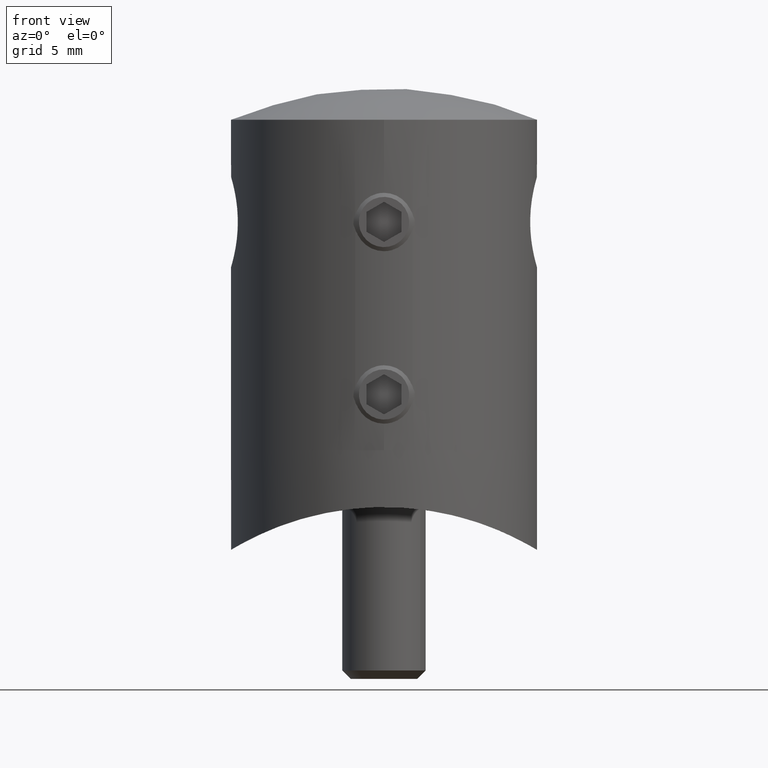
[diagram: clean part render]
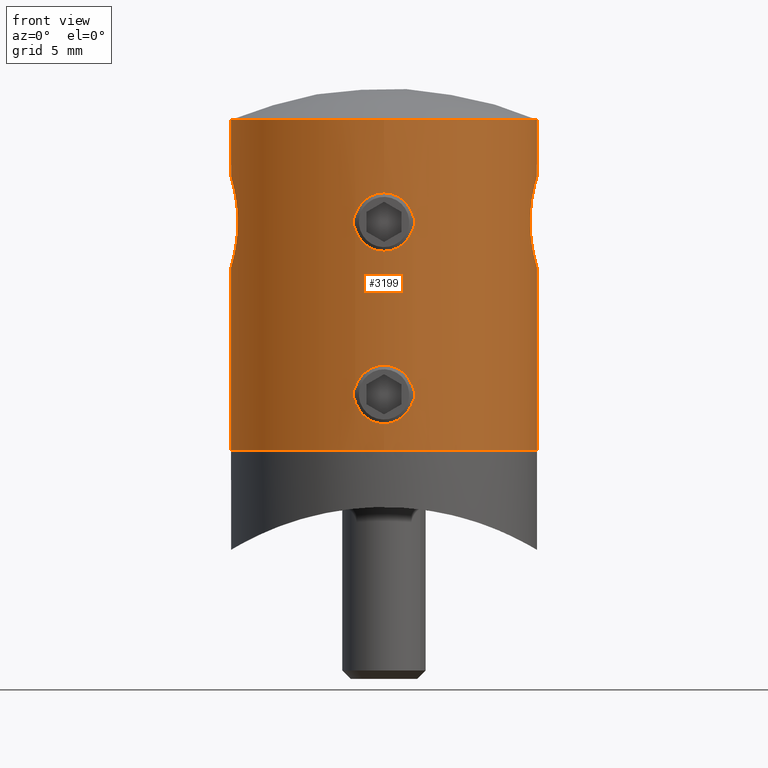
[diagram: same view with one face highlighted and labeled with its STEP entity id]
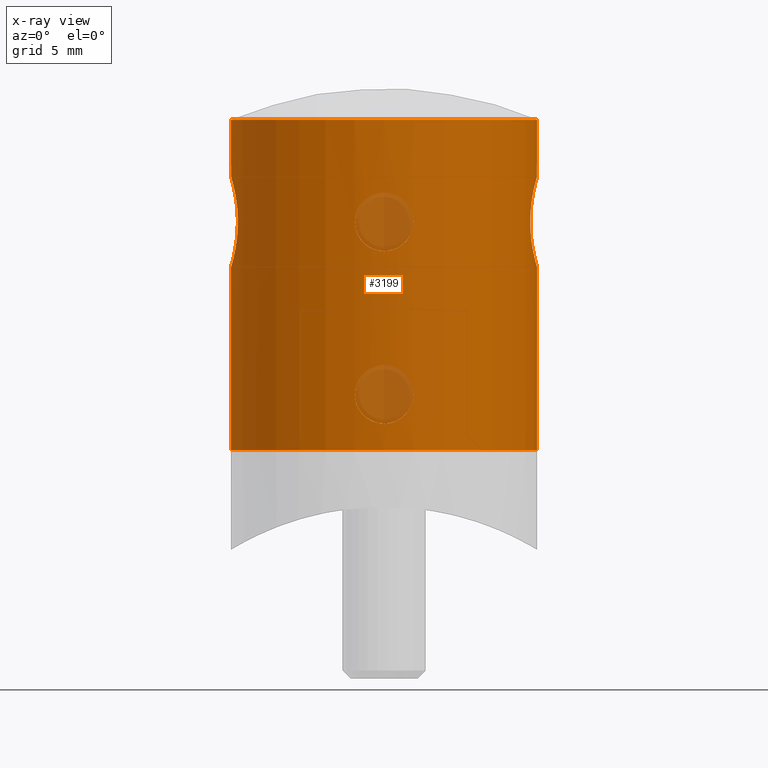
[diagram: x-ray of the same camera — body ghosted, the highlighted face saturated]
A machine part, front view. The second image highlights one B-rep face of the part: STEP entity #3199.
The next image is the same camera in x-ray: the body ghosted, the highlighted face saturated — about 5% of this face is hidden behind the body in this view.
In plain terms, the highlighted cylindrical surface (bore or boss wall) has radius 11 mm, axis along (0, 0, 1).
Its self-contained STEP definition (entity closure, byte-faithful):
#17 = CARTESIAN_POINT ( 'NONE',  ( 10.55956165024552540, 3.082662193727776057, 2.348977628326424760 ) ) ;
#23 = CARTESIAN_POINT ( 'NONE',  ( -2.032659403802354436, -10.81059865162793798, 3.945146108271627927 ) ) ;
#88 = CARTESIAN_POINT ( 'NONE',  ( -0.6781069570240140232, -10.97981643080941438, 5.392249392990757784 ) ) ;
#153 = CARTESIAN_POINT ( 'NONE',  ( -1.054892582810818880, -10.94989690070195998, 5.220954790265365908 ) ) ;
#243 = CARTESIAN_POINT ( 'NONE',  ( -10.82082302089214032, 1.985311474497417183, 5.981802369643311579 ) ) ;
#312 = CARTESIAN_POINT ( 'NONE',  ( -10.87968053426905257, -1.632286244592557667, 6.218326391172696255 ) ) ;
#324 = ORIENTED_EDGE ( 'NONE', *, *, #16314, .T. ) ;
#963 = CARTESIAN_POINT ( 'NONE',  ( -1.388537688308395968, -10.91244555373267389, -10.58133857723259474 ) ) ;
#1035 = CARTESIAN_POINT ( 'NONE',  ( 10.95133815871162497, -1.052168424144557690, 6.482278922429544288 ) ) ;
#1097 = CARTESIAN_POINT ( 'NONE',  ( 10.69344161713029528, -2.581728074328438094, 1.414362566320142012 ) ) ;
#1165 = CARTESIAN_POINT ( 'NONE',  ( 10.90685326097161401, 1.442026654976225730, 6.320285115387410890 ) ) ;
#1186 = EDGE_CURVE ( 'NONE', #5651, #5651, #13024, .T. ) ;
#1204 = CARTESIAN_POINT ( 'NONE',  ( 0.2763807230148072058, -10.99736402501771515, -11.08631854803060968 ) ) ;
#1252 = CARTESIAN_POINT ( 'NONE',  ( 1.293096815573841152, -10.92546660261073121, -10.67704159633094463 ) ) ;
#1271 = CARTESIAN_POINT ( 'NONE',  ( -10.87979518323163752, 1.631551703679881671, 0.5812257195784085173 ) ) ;
#1283 = CARTESIAN_POINT ( 'NONE',  ( 1.887604345443004039, -10.83696457773362098, 2.469507123571951013 ) ) ;
#1313 = CARTESIAN_POINT ( 'NONE',  ( 0.2735815360057495260, -11.00002099589624116, -6.899890021487316005 ) ) ;
#1334 = CARTESIAN_POINT ( 'NONE',  ( -10.63348764701147786, 2.818438293724330634, 5.032002379398877956 ) ) ;
#1341 = CARTESIAN_POINT ( 'NONE',  ( 10.96936271619093439, 0.8467281624249234362, 0.2550005949569723041 ) ) ;
#1413 = CARTESIAN_POINT ( 'NONE',  ( 10.54066686130504849, 3.145828498892194958, 2.556303914701417490 ) ) ;
#1419 = CARTESIAN_POINT ( 'NONE',  ( -0.5472116004057775429, -10.98720989896580846, 5.432113519889659514 ) ) ;
#1456 = DIRECTION ( 'NONE',  ( 0.000000000000000000, -1.000000000000000000, 0.000000000000000000 ) ) ;
#1457 = CARTESIAN_POINT ( 'NONE',  ( -10.51551207130800414, 3.228920975059768939, 2.972865257951308404 ) ) ;
#1461 = CARTESIAN_POINT ( 'NONE',  ( 10.87970059509409815, 1.632192217108486831, 0.5815857855673306487 ) ) ;
#1467 = CARTESIAN_POINT ( 'NONE',  ( 1.670711584421386231, -10.87265779864739379, 2.120311429146117810 ) ) ;
#1574 = CARTESIAN_POINT ( 'NONE',  ( 11.00000000000000000, 1.355252715606880543E-17, 0.1499999999999964972 ) ) ;
#1645 = CARTESIAN_POINT ( 'NONE',  ( -10.50894564109087526, -3.249932540462847630, 3.615274853030530977 ) ) ;
#1771 = EDGE_CURVE ( 'NONE', #5425, #5425, #8791, .T. ) ;
#2399 = EDGE_CURVE ( 'NONE', #7765, #7765, #2874, .T. ) ;
#2419 = CARTESIAN_POINT ( 'NONE',  ( 10.99360481843331527, -0.4298980611793273843, 6.628540109563794580 ) ) ;
#2480 = CARTESIAN_POINT ( 'NONE',  ( 0.000000000000000000, -10.99999999999999822, -11.09999999999999609 ) ) ;
#2493 = CARTESIAN_POINT ( 'NONE',  ( 10.54093356007838622, -3.144939501328844145, 2.552810361236976355 ) ) ;
#2500 = CARTESIAN_POINT ( 'NONE',  ( -2.303929616531696922E-16, -11.00000000000000000, 1.300000000000004263 ) ) ;
#2600 = CARTESIAN_POINT ( 'NONE',  ( 10.55931663660790321, -3.083520468008074555, 4.448870909955585873 ) ) ;
#2634 = CARTESIAN_POINT ( 'NONE',  ( -1.821864279235781092, -10.84835111419837617, -7.946684534337975947 ) ) ;
#2669 = CARTESIAN_POINT ( 'NONE',  ( 10.78931499372130887, -2.148072420595371845, 5.848121061543709587 ) ) ;
#2677 = CARTESIAN_POINT ( 'NONE',  ( -1.887465525486917262, -10.83698959357259994, 4.330840609722904411 ) ) ;
#2708 = CARTESIAN_POINT ( 'NONE',  ( -2.032659403802354436, -10.81059865162793621, -8.454853891728369319 ) ) ;
#2730 = CARTESIAN_POINT ( 'NONE',  ( 10.63372746600594709, 2.817531859397631955, 5.033539881290628237 ) ) ;
#2736 = CARTESIAN_POINT ( 'NONE',  ( -1.834681010053394568, -10.84644128760293569, 2.342309513709591950 ) ) ;
#2739 = AXIS2_PLACEMENT_3D ( 'NONE', #12070, #13402, #5305 ) ;
#2757 = CARTESIAN_POINT ( 'NONE',  ( 1.821258053761724227, -10.84845420623088330, -7.945612156517057656 ) ) ;
#2784 = CARTESIAN_POINT ( 'NONE',  ( 1.885922255304093742, -10.83725952041489116, 4.333980694507823195 ) ) ;
#2790 = B_SPLINE_CURVE_WITH_KNOTS ( 'NONE', 3,
 ( #17297, #16097, #6549, #13367, #3836, #10727, #9254, #9183, #5275, #13319, #1097, #16150, #14744, #17460, #2493, #8018, #17535, #6596, #10556, #14856, #2600, #14674, #12087, #9427, #10790, #2669, #3970, #16052, #5389, #1035, #12147, #2419, #11902, #7948, #13261, #15977, #7891, #1165, #17349, #10602, #17400, #9314, #15039, #2730, #16390, #13676, #5629, #9735, #14986, #8194, #5511, #1413, #17, #6965, #2838, #9668, #9606, #1461, #12376, #13559, #1341, #6897, #16285, #1574 ),
 .UNSPECIFIED., .T., .F.,
 ( 4, 2, 2, 2, 2, 2, 2, 2, 2, 2, 2, 2, 2, 2, 2, 2, 2, 2, 2, 2, 2, 2, 2, 2, 2, 2, 2, 2, 2, 2, 2, 4 ),
 ( 0.000000000000000000, 0.0006385589136293435197, 0.001277117827258687039, 0.001915676740888030668, 0.002554235654517374079, 0.003192794568146717273, 0.003831353481776060468, 0.004469912395405403228, 0.005108471309034746423, 0.005747030222664089617, 0.006385589136293434546, 0.007024148049922779476, 0.007662706963552123537, 0.008301265877181468467, 0.008939824790810811661, 0.009578383704440156590, 0.01021694261806949978, 0.01085550153169884298, 0.01149406044532818617, 0.01213261935895752937, 0.01277117827258687430, 0.01340973718621621576, 0.01404829609984556069, 0.01468685501347490562, 0.01532541392710424881, 0.01596397284073359721, 0.01660253175436294387, 0.01787964958162163373, 0.01851820849525098039, 0.01915676740888032706, 0.01979532632250967025, 0.02043388523613901692 ),
 .UNSPECIFIED. ) ;
#2838 = CARTESIAN_POINT ( 'NONE',  ( 10.69334767689096211, 2.597127137804707608, 1.401245620534072867 ) ) ;
#2846 = CARTESIAN_POINT ( 'NONE',  ( -1.280823970048206473, -10.92577857814184661, 1.730181130698638770 ) ) ;
#2874 = B_SPLINE_CURVE_WITH_KNOTS ( 'NONE', 3,
 ( #2500, #3903, #6658, #5469, #4155, #13625, #8204, #2846, #16290, #15044, #2736, #14921, #8262, #6840, #13513, #23, #4086, #2677, #17542, #12274, #12324, #5578, #10911, #153, #9554, #88, #1419, #9613, #14864, #6972, #5396, #4264, #15100, #13686, #2921, #12154, #11026, #16340, #2784, #16229, #9435, #10794, #5640, #5516, #16398, #1283, #6784, #1467, #8307, #4026, #13745, #14994, #7020, #8074, #8135, #6905 ),
 .UNSPECIFIED., .T., .F.,
 ( 4, 2, 2, 2, 2, 2, 2, 2, 2, 2, 2, 2, 2, 2, 2, 2, 2, 2, 2, 2, 2, 2, 2, 2, 2, 2, 2, 4 ),
 ( 0.000000000000000000, 0.0004112398612379172835, 0.0008224797224758345670, 0.001233719583713751688, 0.001644959444951669134, 0.002467439167427503376, 0.003289918889903338268, 0.003701158751141255497, 0.004112398612379170558, 0.004523638473617086486, 0.004934878334855002414, 0.005346118196092918343, 0.005757358057330834271, 0.006168597918568750199, 0.006579837779806666127, 0.007402317502282496249, 0.007813557363520412177, 0.008224797224758327238, 0.008636037085996242299, 0.009047276947234159095, 0.009869756669709989216, 0.01028099653094790601, 0.01069223639218581934, 0.01110347625342373440, 0.01151471611466164773, 0.01233719583713747958, 0.01274843569837539464, 0.01315967555961331144 ),
 .UNSPECIFIED. ) ;
#2906 = CARTESIAN_POINT ( 'NONE',  ( -10.95133815871162675, 1.052168424144557246, 6.482278922429543400 ) ) ;
#2921 = CARTESIAN_POINT ( 'NONE',  ( 1.386736755965821910, -10.91267702308485532, 4.982939538335889651 ) ) ;
#3006 = CARTESIAN_POINT ( 'NONE',  ( -10.54066686130505026, -3.145828498892194958, 2.556303914701415714 ) ) ;
#3199 = ADVANCED_FACE ( 'NONE', ( #11616, #16071, #10785, #8881, #13524, #15224 ), #11006, .T. ) ;
#3270 = ORIENTED_EDGE ( 'NONE', *, *, #2399, .T. ) ;
#3836 = CARTESIAN_POINT ( 'NONE',  ( 10.95133973977292108, -1.052276231709177834, 0.3177073230599884446 ) ) ;
#3841 = EDGE_LOOP ( 'NONE', ( #324 ) ) ;
#3871 = CARTESIAN_POINT ( 'NONE',  ( 1.386736755965818357, -10.91267702308485887, -7.417060461664108928 ) ) ;
#3903 = CARTESIAN_POINT ( 'NONE',  ( -0.1390778096618651982, -10.99999999999999467, 1.300000000000004041 ) ) ;
#3911 = EDGE_LOOP ( 'NONE', ( #3270 ) ) ;
#3942 = CARTESIAN_POINT ( 'NONE',  ( 1.887604345443003817, -10.83696457773361743, -9.930492876428047566 ) ) ;
#3970 = CARTESIAN_POINT ( 'NONE',  ( 10.82082302089213144, -1.985311474497415851, 5.981802369643309802 ) ) ;
#4000 = CARTESIAN_POINT ( 'NONE',  ( 1.885922255304093076, -10.83725952041489293, -8.066019305492174496 ) ) ;
#4014 = CARTESIAN_POINT ( 'NONE',  ( -10.55979327443990634, 3.081865600628499013, 2.346756242581110374 ) ) ;
#4026 = CARTESIAN_POINT ( 'NONE',  ( 1.293096815573843372, -10.92546660261073299, 1.722958403669058836 ) ) ;
#4052 = CARTESIAN_POINT ( 'NONE',  ( 0.6806038088607760939, -10.97965432502793348, -10.99135240385638923 ) ) ;
#4073 = CARTESIAN_POINT ( 'NONE',  ( -10.72521692924357417, 2.448112533877693231, 5.548082139390231760 ) ) ;
#4086 = CARTESIAN_POINT ( 'NONE',  ( -1.992922399063346006, -10.81809270954977897, 4.076203121792942419 ) ) ;
#4155 = CARTESIAN_POINT ( 'NONE',  ( -0.6781376468636776123, -10.97981628967169776, 1.407749422554937180 ) ) ;
#4203 = CARTESIAN_POINT ( 'NONE',  ( -11.00002661612281329, -0.2114747014784292556, 6.650090085346186619 ) ) ;
#4251 = CARTESIAN_POINT ( 'NONE',  ( 0.000000000000000000, -2.434903461179736260E-17, 10.74878637916746804 ) ) ;
#4264 = CARTESIAN_POINT ( 'NONE',  ( 0.9298327460409496759, -10.96136311852415623, 5.287892041088646522 ) ) ;
#4306 = CARTESIAN_POINT ( 'NONE',  ( -10.99382538071746573, -0.4248343345359129608, 6.629290888909211255 ) ) ;
#4374 = CARTESIAN_POINT ( 'NONE',  ( -10.90685326097161045, -1.442026654976226174, 6.320285115387410002 ) ) ;
#4428 = CARTESIAN_POINT ( 'NONE',  ( -10.95153199571420721, -1.050159929190337849, 6.482964507083750050 ) ) ;
#4711 = ORIENTED_EDGE ( 'NONE', *, *, #11711, .T. ) ;
#4932 = DIRECTION ( 'NONE',  ( -0.000000000000000000, 1.081595917263183534E-17, 1.000000000000000000 ) ) ;
#5021 = CARTESIAN_POINT ( 'NONE',  ( -0.6781376468636769461, -10.97981628967169243, -10.99225057744506806 ) ) ;
#5183 = CARTESIAN_POINT ( 'NONE',  ( -2.044350993406146788, -10.80888394006649733, -9.552623370116647195 ) ) ;
#5254 = CARTESIAN_POINT ( 'NONE',  ( -2.100080576060141979, -10.79766926613581823, -8.863934974792822885 ) ) ;
#5275 = CARTESIAN_POINT ( 'NONE',  ( 10.78896276715286362, -2.149762789597315038, 0.9534896782864721310 ) ) ;
#5305 = DIRECTION ( 'NONE',  ( 0.000000000000000000, -1.000000000000000000, 0.000000000000000000 ) ) ;
#5320 = CARTESIAN_POINT ( 'NONE',  ( -10.78896276715286717, 2.149762789597315926, 0.9534896782864713538 ) ) ;
#5361 = CARTESIAN_POINT ( 'NONE',  ( -5.421010862427522170E-17, -11.00000000000000000, -11.09999999999999787 ) ) ;
#5381 = CARTESIAN_POINT ( 'NONE',  ( -10.54083420043813213, 3.145268873415251409, 4.245677190015647362 ) ) ;
#5389 = CARTESIAN_POINT ( 'NONE',  ( 10.90660291162980933, -1.443910934666143397, 6.319353175135170808 ) ) ;
#5396 = CARTESIAN_POINT ( 'NONE',  ( 0.5505417721006471421, -10.98913941872515565, 5.444946193628508624 ) ) ;
#5425 = VERTEX_POINT ( 'NONE', #2480 ) ;
#5431 = CARTESIAN_POINT ( 'NONE',  ( 2.086595700918373542, -10.80031737092473421, -9.273735418408087128 ) ) ;
#5456 = CARTESIAN_POINT ( 'NONE',  ( -10.95133973977291575, 1.052276231709178722, 0.3177073230599885001 ) ) ;
#5469 = CARTESIAN_POINT ( 'NONE',  ( -0.5445907593099170718, -10.98733418043456744, 1.367217711978823580 ) ) ;
#5492 = CARTESIAN_POINT ( 'NONE',  ( -0.9319663072103629986, -10.96118774137462815, -7.113117520548483341 ) ) ;
#5511 = CARTESIAN_POINT ( 'NONE',  ( 10.51543955889966853, 3.229152475276543921, 2.974989035193387643 ) ) ;
#5516 = CARTESIAN_POINT ( 'NONE',  ( 2.033263212878623882, -10.81048461628543755, 2.857180135278210020 ) ) ;
#5563 = CARTESIAN_POINT ( 'NONE',  ( -10.62876815859237212, -2.838640733659557380, 1.761575241032941497 ) ) ;
#5578 = CARTESIAN_POINT ( 'NONE',  ( -1.387671354983934791, -10.91256495734889498, 4.982224727458483216 ) ) ;
#5621 = CARTESIAN_POINT ( 'NONE',  ( -10.51543955889967386, -3.229152475276543921, 2.974989035193390752 ) ) ;
#5629 = CARTESIAN_POINT ( 'NONE',  ( 10.54100170543571835, 3.144708051160631346, 4.247596828305608696 ) ) ;
#5640 = CARTESIAN_POINT ( 'NONE',  ( 2.086595700918373986, -10.80031737092473598, 3.126264581591914116 ) ) ;
#5651 = VERTEX_POINT ( 'NONE', #17389 ) ;
#5695 = CARTESIAN_POINT ( 'NONE',  ( -10.82104704333672096, -1.984123937140142901, 5.982745483692514021 ) ) ;
#5743 = CARTESIAN_POINT ( 'NONE',  ( -10.69334767689096033, -2.597127137804708052, 1.401245620534072867 ) ) ;
#5797 = CARTESIAN_POINT ( 'NONE',  ( -10.96936271619093084, -0.8467281624249207717, 0.2550005949569715269 ) ) ;
#6295 = ORIENTED_EDGE ( 'NONE', *, *, #1186, .F. ) ;
#6450 = CARTESIAN_POINT ( 'NONE',  ( -1.834681010053395678, -10.84644128760293569, -10.05769048629040796 ) ) ;
#6521 = CARTESIAN_POINT ( 'NONE',  ( -1.052791956378938742, -10.95010395737945252, -10.82220585969553284 ) ) ;
#6549 = CARTESIAN_POINT ( 'NONE',  ( 10.99364795580406984, -0.4281686238539245681, 0.1713184752164194913 ) ) ;
#6596 = CARTESIAN_POINT ( 'NONE',  ( 10.50888097400719445, -3.250141642506715556, 3.611128132238753174 ) ) ;
#6628 = CARTESIAN_POINT ( 'NONE',  ( -1.281990447053926729, -10.92563686889392649, -7.331115581257310332 ) ) ;
#6658 = CARTESIAN_POINT ( 'NONE',  ( -0.2757686476963308597, -10.99736528176723205, 1.313679176500867296 ) ) ;
#6710 = CARTESIAN_POINT ( 'NONE',  ( -10.50888097400719445, 3.250141642506714668, 3.611128132238751842 ) ) ;
#6757 = CARTESIAN_POINT ( 'NONE',  ( -0.5472116004057776539, -10.98720989896580669, -6.967886480110341729 ) ) ;
#6784 = CARTESIAN_POINT ( 'NONE',  ( 1.823215479922151827, -10.84812657183626960, 2.348921815245837319 ) ) ;
#6809 = CARTESIAN_POINT ( 'NONE',  ( 1.670711584421387341, -10.87265779864739201, -10.27968857085388166 ) ) ;
#6840 = CARTESIAN_POINT ( 'NONE',  ( -2.100080576060140647, -10.79766926613582001, 3.536065025207176138 ) ) ;
#6869 = CARTESIAN_POINT ( 'NONE',  ( 2.099795748563274334, -10.79772466112062546, -8.721067090500651986 ) ) ;
#6897 = CARTESIAN_POINT ( 'NONE',  ( 10.99364440738194304, 0.4285436085661384897, 0.1713284133684951360 ) ) ;
#6905 = CARTESIAN_POINT ( 'NONE',  ( -2.303929616531696922E-16, -11.00000000000000000, 1.300000000000004263 ) ) ;
#6965 = CARTESIAN_POINT ( 'NONE',  ( 10.62876815859236856, 2.838640733659554272, 1.761575241032938388 ) ) ;
#6972 = CARTESIAN_POINT ( 'NONE',  ( 0.2735815360057507473, -11.00002099589623938, 5.500109978512680797 ) ) ;
#7020 = CARTESIAN_POINT ( 'NONE',  ( 0.5474969020630475747, -10.98720387291686507, 1.367917686179494385 ) ) ;
#7060 = CARTESIAN_POINT ( 'NONE',  ( -10.55949912972683968, -3.082908798032038877, 4.450823723019629696 ) ) ;
#7109 = EDGE_CURVE ( 'NONE', #15175, #15175, #16063, .T. ) ;
#7120 = CARTESIAN_POINT ( 'NONE',  ( -10.95113902086531965, -1.054255281315769288, 0.3184237455568702524 ) ) ;
#7148 = VERTEX_POINT ( 'NONE', #16143 ) ;
#7190 = CARTESIAN_POINT ( 'NONE',  ( -10.96938780099209687, -0.8468836903340380973, 6.545090121449427478 ) ) ;
#7358 = ORIENTED_EDGE ( 'NONE', *, *, #7109, .T. ) ;
#7765 = VERTEX_POINT ( 'NONE', #7936 ) ;
#7869 = CARTESIAN_POINT ( 'NONE',  ( -0.2757686476963308042, -10.99736528176723205, -11.08632082349912729 ) ) ;
#7891 = CARTESIAN_POINT ( 'NONE',  ( 10.95153199571420366, 1.050159929190336294, 6.482964507083748273 ) ) ;
#7936 = CARTESIAN_POINT ( 'NONE',  ( 0.000000000000000000, -10.99999999999999822, 1.300000000000003819 ) ) ;
#7948 = CARTESIAN_POINT ( 'NONE',  ( 11.00002661612280974, 0.2114747014784297274, 6.650090085346187507 ) ) ;
#7962 = VERTEX_POINT ( 'NONE', #11955 ) ;
#7993 = CARTESIAN_POINT ( 'NONE',  ( 1.059417076819560322, -10.95179245714164651, -10.83370096287937479 ) ) ;
#8018 = CARTESIAN_POINT ( 'NONE',  ( 10.51551207130800591, -3.228920975059770271, 2.972865257951310181 ) ) ;
#8052 = CARTESIAN_POINT ( 'NONE',  ( 0.5505417721006465870, -10.98913941872515920, -6.955053806371497060 ) ) ;
#8074 = CARTESIAN_POINT ( 'NONE',  ( 0.2763807230148077054, -10.99736402501771515, 1.313681451969391123 ) ) ;
#8121 = CARTESIAN_POINT ( 'NONE',  ( -10.69344161713029884, 2.581728074328438538, 1.414362566320143122 ) ) ;
#8135 = CARTESIAN_POINT ( 'NONE',  ( 0.1390778096618647541, -11.00000000000000355, 1.300000000000004485 ) ) ;
#8194 = CARTESIAN_POINT ( 'NONE',  ( 10.50890401506055305, 3.250067138876735484, 3.186766858344670883 ) ) ;
#8196 = EDGE_LOOP ( 'NONE', ( #8441 ) ) ;
#8204 = CARTESIAN_POINT ( 'NONE',  ( -1.052791956378939187, -10.95010395737944897, 1.577794140304467962 ) ) ;
#8233 = CARTESIAN_POINT ( 'NONE',  ( 0.1390778096618671689, -11.00000000000000355, -11.10000000000000142 ) ) ;
#8262 = CARTESIAN_POINT ( 'NONE',  ( -2.099837753199915280, -10.79771649180663928, 3.124156061593999389 ) ) ;
#8307 = CARTESIAN_POINT ( 'NONE',  ( 1.582514419226412672, -10.88600606640207857, 2.012812166464708508 ) ) ;
#8425 = CARTESIAN_POINT ( 'NONE',  ( -10.69314154176931453, -2.582899449784521462, 5.383826795562177026 ) ) ;
#8432 = AXIS2_PLACEMENT_3D ( 'NONE', #4251, #13736, #1456 ) ;
#8441 = ORIENTED_EDGE ( 'NONE', *, *, #1771, .T. ) ;
#8478 = CARTESIAN_POINT ( 'NONE',  ( -10.99999999999999467, -0.2160055992346799625, 0.1499999999999964695 ) ) ;
#8791 = B_SPLINE_CURVE_WITH_KNOTS ( 'NONE', 3,
 ( #13121, #14539, #7869, #10584, #5021, #15850, #6521, #11941, #963, #10354, #6450, #5183, #14647, #5254, #10767, #2708, #10693, #9469, #2634, #10636, #14783, #12181, #6628, #13348, #5492, #14955, #6757, #12012, #9341, #1313, #8052, #16082, #17504, #12068, #3871, #9399, #12121, #2757, #4000, #13476, #6869, #9527, #5431, #14891, #14710, #3942, #16261, #6809, #16311, #1252, #7993, #4052, #17433, #1204, #8233, #5361 ),
 .UNSPECIFIED., .T., .F.,
 ( 4, 2, 2, 2, 2, 2, 2, 2, 2, 2, 2, 2, 2, 2, 2, 2, 2, 2, 2, 2, 2, 2, 2, 2, 2, 2, 2, 4 ),
 ( 0.000000000000000000, 0.0004112398612379134888, 0.0008224797224758267607, 0.001233719583713739762, 0.001644959444951652654, 0.002467439167427479089, 0.003289918889903304874, 0.003701158751141219935, 0.004112398612379135864, 0.004523638473617050924, 0.004934878334854965118, 0.005346118196092881046, 0.005757358057330795240, 0.006168597918568711168, 0.006579837779806626229, 0.007402317502282455483, 0.007813557363520372279, 0.008224797224758285605, 0.008636037085996200666, 0.009047276947234115727, 0.009869756669709951052, 0.01028099653094787305, 0.01069223639218579332, 0.01110347625342371358, 0.01151471611466163385, 0.01233719583713747785, 0.01274843569837539811, 0.01315967555961331664 ),
 .UNSPECIFIED. ) ;
#8881 = FACE_BOUND ( 'NONE', #16019, .T. ) ;
#9183 = CARTESIAN_POINT ( 'NONE',  ( 10.82108718208419873, -1.983929532161890164, 0.8170805244524391719 ) ) ;
#9254 = CARTESIAN_POINT ( 'NONE',  ( 10.87979518323163397, -1.631551703679882781, 0.5812257195784081842 ) ) ;
#9271 = CIRCLE ( 'NONE', #2739, 11.00000000000000000 ) ;
#9314 = CARTESIAN_POINT ( 'NONE',  ( 10.72546277658124936, 2.447034136019467621, 5.549298924399434618 ) ) ;
#9341 = CARTESIAN_POINT ( 'NONE',  ( -0.1380551056559362610, -10.99998945361097569, -6.900055242994412197 ) ) ;
#9399 = CARTESIAN_POINT ( 'NONE',  ( 1.580486696390908996, -10.88630426008028351, -7.610468346922246496 ) ) ;
#9427 = CARTESIAN_POINT ( 'NONE',  ( 10.69293793460732012, -2.583743849787214941, 5.382749076555591650 ) ) ;
#9435 = CARTESIAN_POINT ( 'NONE',  ( 2.099795748563275666, -10.79772466112062901, 3.678932909499353254 ) ) ;
#9469 = CARTESIAN_POINT ( 'NONE',  ( -1.887465525486915929, -10.83698959357260527, -8.069159390277093280 ) ) ;
#9494 = CARTESIAN_POINT ( 'NONE',  ( -10.63327948049522931, 2.819287313919774718, 1.769142891183481447 ) ) ;
#9527 = CARTESIAN_POINT ( 'NONE',  ( 2.100101276507924997, -10.79766524018844898, -9.137153442652046209 ) ) ;
#9554 = CARTESIAN_POINT ( 'NONE',  ( -0.9319663072103634427, -10.96118774137463170, 5.286882479451516126 ) ) ;
#9599 = CARTESIAN_POINT ( 'NONE',  ( -10.99364795580407339, 0.4281686238539237910, 0.1713184752164194913 ) ) ;
#9606 = CARTESIAN_POINT ( 'NONE',  ( 10.82093925690012703, 1.984744333902531244, 0.8176948192075681465 ) ) ;
#9613 = CARTESIAN_POINT ( 'NONE',  ( -0.2774242944193054949, -10.99732956950990292, 5.486135579055913425 ) ) ;
#9662 = CARTESIAN_POINT ( 'NONE',  ( -10.99999999999999467, -1.084202172485504434E-16, 0.1499999999999964695 ) ) ;
#9668 = CARTESIAN_POINT ( 'NONE',  ( 10.78883819270991928, 2.150385762769400966, 0.9540363491830772258 ) ) ;
#9730 = CARTESIAN_POINT ( 'NONE',  ( -10.63372746600593821, -2.817531859397631955, 5.033539881290627349 ) ) ;
#9735 = CARTESIAN_POINT ( 'NONE',  ( 10.51571017952344711, 3.228272773682561603, 3.831119483540374127 ) ) ;
#9777 = CARTESIAN_POINT ( 'NONE',  ( -10.54100170543571835, -3.144708051160629569, 4.247596828305606032 ) ) ;
#9833 = CARTESIAN_POINT ( 'NONE',  ( -10.90630633480980016, -1.446161188729948588, 0.4817498005926354465 ) ) ;
#10354 = CARTESIAN_POINT ( 'NONE',  ( -1.678338565524258641, -10.87295724076965264, -10.29145425403354608 ) ) ;
#10390 = DIRECTION ( 'NONE',  ( 0.000000000000000000, -1.000000000000000000, 0.000000000000000000 ) ) ;
#10556 = CARTESIAN_POINT ( 'NONE',  ( 10.51556348105383876, -3.228750006291583929, 3.827854639637940704 ) ) ;
#10584 = CARTESIAN_POINT ( 'NONE',  ( -0.5445907593099171828, -10.98733418043456922, -11.03278228802117056 ) ) ;
#10602 = CARTESIAN_POINT ( 'NONE',  ( 10.82104704333672451, 1.984123937140142901, 5.982745483692513133 ) ) ;
#10636 = CARTESIAN_POINT ( 'NONE',  ( -1.670043013049527181, -10.87275805320107658, -7.719523816417274809 ) ) ;
#10693 = CARTESIAN_POINT ( 'NONE',  ( -1.992922399063346006, -10.81809270954978075, -8.323796878207067707 ) ) ;
#10717 = CARTESIAN_POINT ( 'NONE',  ( -10.72530623168116826, 2.447652728474610573, 1.251538009044874888 ) ) ;
#10727 = CARTESIAN_POINT ( 'NONE',  ( 10.90642676691805590, -1.445331291297211829, 0.4812963712402680838 ) ) ;
#10767 = CARTESIAN_POINT ( 'NONE',  ( -2.086371845620103915, -10.80036110415988482, -8.724425957257206932 ) ) ;
#10782 = CARTESIAN_POINT ( 'NONE',  ( -10.99999999999999645, 0.000000000000000000, 0.1499999999999964972 ) ) ;
#10785 = FACE_BOUND ( 'NONE', #16841, .T. ) ;
#10790 = CARTESIAN_POINT ( 'NONE',  ( 10.72521692924356884, -2.448112533877691011, 5.548082139390230871 ) ) ;
#10794 = CARTESIAN_POINT ( 'NONE',  ( 2.100101276507925885, -10.79766524018844898, 3.262846557347955034 ) ) ;
#10873 = EDGE_LOOP ( 'NONE', ( #6295 ) ) ;
#10898 = CARTESIAN_POINT ( 'NONE',  ( -10.82108718208419695, 1.983929532161889275, 0.8170805244524388389 ) ) ;
#10911 = CARTESIAN_POINT ( 'NONE',  ( -1.281990447053926951, -10.92563686889391938, 5.068884418742695352 ) ) ;
#10965 = CARTESIAN_POINT ( 'NONE',  ( -10.78931499372130887, 2.148072420595372733, 5.848121061543707810 ) ) ;
#11006 = CYLINDRICAL_SURFACE ( 'NONE', #13529, 10.99999999999999645 ) ;
#11026 = CARTESIAN_POINT ( 'NONE',  ( 1.669073131240826457, -10.87290827909674107, 4.681760315131693773 ) ) ;
#11127 = CARTESIAN_POINT ( 'NONE',  ( -10.99997321076161860, 0.2142346080874176495, 6.649909328724201707 ) ) ;
#11616 = FACE_BOUND ( 'NONE', #8196, .T. ) ;
#11711 = EDGE_CURVE ( 'NONE', #7148, #7148, #2790, .T. ) ;
#11747 = CARTESIAN_POINT ( 'NONE',  ( 0.000000000000000000, 0.000000000000000000, 13.00000000000000178 ) ) ;
#11902 = CARTESIAN_POINT ( 'NONE',  ( 10.99997321076162926, -0.2142346080874187320, 6.649909328724204371 ) ) ;
#11941 = CARTESIAN_POINT ( 'NONE',  ( -1.280823970048206251, -10.92577857814184128, -10.66981886930135737 ) ) ;
#11955 = CARTESIAN_POINT ( 'NONE',  ( 0.000000000000000000, -11.00000000000000000, -13.00000000000000178 ) ) ;
#12012 = CARTESIAN_POINT ( 'NONE',  ( -0.2774242944193053839, -10.99732956950990115, -6.913864420944086042 ) ) ;
#12068 = CARTESIAN_POINT ( 'NONE',  ( 1.281199630984558802, -10.92573843364916009, -7.330432807688803010 ) ) ;
#12070 = CARTESIAN_POINT ( 'NONE',  ( 0.000000000000000000, -2.812149384884277619E-16, -13.00000000000000178 ) ) ;
#12087 = CARTESIAN_POINT ( 'NONE',  ( 10.63348764701148497, -2.818438293724330634, 5.032002379398879732 ) ) ;
#12121 = CARTESIAN_POINT ( 'NONE',  ( 1.669073131240823349, -10.87290827909674107, -7.718239684868305694 ) ) ;
#12141 = CARTESIAN_POINT ( 'NONE',  ( -10.60585941788002273, 2.919396442316302576, 1.956274816500715996 ) ) ;
#12147 = CARTESIAN_POINT ( 'NONE',  ( 10.96916414007961826, -0.8494688427937755471, 6.544310141698896466 ) ) ;
#12154 = CARTESIAN_POINT ( 'NONE',  ( 1.580486696390910106, -10.88630426008027996, 4.789531653077755635 ) ) ;
#12181 = CARTESIAN_POINT ( 'NONE',  ( -1.387671354983934568, -10.91256495734889675, -7.417775272541513587 ) ) ;
#12265 = CARTESIAN_POINT ( 'NONE',  ( -10.96946992123951858, 0.8451942934197916868, 0.2546288986349467542 ) ) ;
#12274 = CARTESIAN_POINT ( 'NONE',  ( -1.670043013049525404, -10.87275805320107125, 4.680476183582724659 ) ) ;
#12312 = CARTESIAN_POINT ( 'NONE',  ( -10.87938309479803856, 1.634226415421991430, 6.217173965129577873 ) ) ;
#12324 = CARTESIAN_POINT ( 'NONE',  ( -1.582902319642925049, -10.88596003962311087, 4.786898382756668902 ) ) ;
#12370 = CARTESIAN_POINT ( 'NONE',  ( -10.50890401506055838, -3.250067138876735040, 3.186766858344670439 ) ) ;
#12376 = CARTESIAN_POINT ( 'NONE',  ( 10.90630633480979661, 1.446161188729945035, 0.4817498005926340032 ) ) ;
#12490 = CARTESIAN_POINT ( 'NONE',  ( -10.55956165024552362, -3.082662193727775612, 2.348977628326421652 ) ) ;
#12538 = CARTESIAN_POINT ( 'NONE',  ( -10.78952390085560076, -2.147021617855825237, 5.849032482783530718 ) ) ;
#13024 = CIRCLE ( 'NONE', #8432, 10.99999999999999467 ) ;
#13121 = CARTESIAN_POINT ( 'NONE',  ( -5.421010862427522170E-17, -11.00000000000000000, -11.09999999999999787 ) ) ;
#13261 = CARTESIAN_POINT ( 'NONE',  ( 10.99382538071747106, 0.4248343345359131829, 6.629290888909210366 ) ) ;
#13319 = CARTESIAN_POINT ( 'NONE',  ( 10.72530623168116293, -2.447652728474609241, 1.251538009044874888 ) ) ;
#13348 = CARTESIAN_POINT ( 'NONE',  ( -1.054892582810820212, -10.94989690070195998, -7.179045209734632671 ) ) ;
#13367 = CARTESIAN_POINT ( 'NONE',  ( 10.96946992123952036, -0.8451942934197921309, 0.2546288986349470318 ) ) ;
#13402 = DIRECTION ( 'NONE',  ( -0.000000000000000000, 1.081595917263183534E-17, 1.000000000000000000 ) ) ;
#13476 = CARTESIAN_POINT ( 'NONE',  ( 2.044856290180034897, -10.80879962882139722, -8.448045730545238996 ) ) ;
#13501 = CARTESIAN_POINT ( 'NONE',  ( -10.51556348105383876, 3.228750006291584818, 3.827854639637938039 ) ) ;
#13513 = CARTESIAN_POINT ( 'NONE',  ( -2.086371845620103027, -10.80036110415988482, 3.675574042742794756 ) ) ;
#13524 = FACE_OUTER_BOUND ( 'NONE', #10873, .T. ) ;
#13529 = AXIS2_PLACEMENT_3D ( 'NONE', #11747, #4932, #10390 ) ;
#13559 = CARTESIAN_POINT ( 'NONE',  ( 10.95113902086531965, 1.054255281315767068, 0.3184237455568696418 ) ) ;
#13610 = CARTESIAN_POINT ( 'NONE',  ( -10.55931663660789788, 3.083520468008074999, 4.448870909955584985 ) ) ;
#13625 = CARTESIAN_POINT ( 'NONE',  ( -0.9322983872529652105, -10.96116125874257996, 1.513269296229716065 ) ) ;
#13669 = CARTESIAN_POINT ( 'NONE',  ( -10.51571017952344711, -3.228272773682562491, 3.831119483540372794 ) ) ;
#13676 = CARTESIAN_POINT ( 'NONE',  ( 10.55949912972683791, 3.082908798032037545, 4.450823723019634137 ) ) ;
#13686 = CARTESIAN_POINT ( 'NONE',  ( 1.281199630984558580, -10.92573843364915476, 5.069567192311198234 ) ) ;
#13736 = DIRECTION ( 'NONE',  ( -0.000000000000000000, 1.081595917263183534E-17, 1.000000000000000000 ) ) ;
#13737 = CARTESIAN_POINT ( 'NONE',  ( -10.96916414007962004, 0.8494688427937762132, 6.544310141698897354 ) ) ;
#13745 = CARTESIAN_POINT ( 'NONE',  ( 1.059417076819560100, -10.95179245714164651, 1.566299037120627569 ) ) ;
#13780 = CARTESIAN_POINT ( 'NONE',  ( -10.99360481843332060, 0.4298980611793295492, 6.628540109563795468 ) ) ;
#13834 = CARTESIAN_POINT ( 'NONE',  ( -10.72546277658124758, -2.447034136019468953, 5.549298924399433730 ) ) ;
#13906 = CARTESIAN_POINT ( 'NONE',  ( -10.82093925690012703, -1.984744333902532354, 0.8176948192075682575 ) ) ;
#14539 = CARTESIAN_POINT ( 'NONE',  ( -0.1390778096618653092, -10.99999999999999645, -11.09999999999999254 ) ) ;
#14647 = CARTESIAN_POINT ( 'NONE',  ( -2.099837753199914836, -10.79771649180664284, -9.275843938405992972 ) ) ;
#14674 = CARTESIAN_POINT ( 'NONE',  ( 10.60583606846840432, -2.919504683596816363, 4.843856317239369602 ) ) ;
#14710 = CARTESIAN_POINT ( 'NONE',  ( 1.992727468485251618, -10.81812777981166462, -9.676686333808367735 ) ) ;
#14733 = CARTESIAN_POINT ( 'NONE',  ( -10.99999999999999467, -1.084202172485504434E-16, 0.1499999999999964695 ) ) ;
#14744 = CARTESIAN_POINT ( 'NONE',  ( 10.60585941788002273, -2.919396442316301687, 1.956274816500715996 ) ) ;
#14783 = CARTESIAN_POINT ( 'NONE',  ( -1.582902319642925049, -10.88596003962311975, -7.613101617243329677 ) ) ;
#14800 = CARTESIAN_POINT ( 'NONE',  ( -10.50896903074394295, 3.249856909630215895, 3.184533409764714662 ) ) ;
#14850 = CARTESIAN_POINT ( 'NONE',  ( -10.69293793460732012, 2.583743849787215385, 5.382749076555594314 ) ) ;
#14856 = CARTESIAN_POINT ( 'NONE',  ( 10.54083420043813213, -3.145268873415251853, 4.245677190015651803 ) ) ;
#14864 = CARTESIAN_POINT ( 'NONE',  ( -0.1380551056559368717, -10.99998945361096681, 5.499944757005584606 ) ) ;
#14891 = CARTESIAN_POINT ( 'NONE',  ( 2.033263212878624770, -10.81048461628543755, -9.542819864721787226 ) ) ;
#14909 = CARTESIAN_POINT ( 'NONE',  ( -10.60583606846840432, 2.919504683596816808, 4.843856317239366938 ) ) ;
#14921 = CARTESIAN_POINT ( 'NONE',  ( -2.044350993406146788, -10.80888394006650266, 2.847376629883352273 ) ) ;
#14955 = CARTESIAN_POINT ( 'NONE',  ( -0.6781069570240135791, -10.97981643080941083, -7.007750607009238131 ) ) ;
#14986 = CARTESIAN_POINT ( 'NONE',  ( 10.50894564109086993, 3.249932540462846742, 3.615274853030528757 ) ) ;
#14994 = CARTESIAN_POINT ( 'NONE',  ( 0.6806038088607768710, -10.97965432502792993, 1.408647596143614900 ) ) ;
#15039 = CARTESIAN_POINT ( 'NONE',  ( 10.69314154176932163, 2.582899449784520574, 5.383826795562178802 ) ) ;
#15044 = CARTESIAN_POINT ( 'NONE',  ( -1.678338565524257753, -10.87295724076965797, 2.108545745966448948 ) ) ;
#15100 = CARTESIAN_POINT ( 'NONE',  ( 1.052429674837028317, -10.95014267461733937, 5.222448595598597976 ) ) ;
#15144 = CARTESIAN_POINT ( 'NONE',  ( -10.60626422531554880, -2.917962938502946191, 4.847083081017616202 ) ) ;
#15175 = VERTEX_POINT ( 'NONE', #10782 ) ;
#15212 = CARTESIAN_POINT ( 'NONE',  ( -10.87970059509410525, -1.632192217108486831, 0.5815857855673302046 ) ) ;
#15224 = FACE_OUTER_BOUND ( 'NONE', #3841, .T. ) ;
#15850 = CARTESIAN_POINT ( 'NONE',  ( -0.9322983872529648774, -10.96116125874258174, -10.88673070377028118 ) ) ;
#15977 = CARTESIAN_POINT ( 'NONE',  ( 10.96938780099210220, 0.8468836903340392075, 6.545090121449431919 ) ) ;
#16019 = EDGE_LOOP ( 'NONE', ( #4711 ) ) ;
#16052 = CARTESIAN_POINT ( 'NONE',  ( 10.87938309479803500, -1.634226415421988543, 6.217173965129577873 ) ) ;
#16063 = B_SPLINE_CURVE_WITH_KNOTS ( 'NONE', 3,
 ( #14733, #17453, #9599, #12265, #5456, #17579, #1271, #10898, #5320, #10717, #8121, #9494, #12141, #4014, #16326, #1457, #14800, #6710, #13501, #5381, #13610, #14909, #1334, #14850, #4073, #10965, #243, #12312, #16512, #2906, #13737, #13780, #11127, #4203, #4306, #7190, #4428, #4374, #312, #5695, #12538, #13834, #8425, #9730, #15144, #7060, #9777, #13669, #1645, #12370, #5621, #3006, #12490, #5563, #5743, #16624, #13906, #15212, #9833, #7120, #5797, #16562, #8478, #9662 ),
 .UNSPECIFIED., .T., .F.,
 ( 4, 2, 2, 2, 2, 2, 2, 2, 2, 2, 2, 2, 2, 2, 2, 2, 2, 2, 2, 2, 2, 2, 2, 2, 2, 2, 2, 2, 2, 2, 2, 4 ),
 ( 0.000000000000000000, 0.0006385589136293430860, 0.001277117827258686172, 0.001915676740888029366, 0.002554235654517372344, 0.003192794568146715105, 0.003831353481776058733, 0.004469912395405402361, 0.005108471309034744688, 0.005747030222664087883, 0.006385589136293431944, 0.007024148049922776874, 0.007662706963552120935, 0.008301265877181464997, 0.008939824790810809926, 0.009578383704440156590, 0.01021694261806950152, 0.01085550153169884645, 0.01149406044532819138, 0.01213261935895753804, 0.01277117827258688124, 0.01340973718621622790, 0.01404829609984557456, 0.01468685501347491776, 0.01532541392710426095, 0.01596397284073360415, 0.01660253175436294734, 0.01787964958162163373, 0.01851820849525097692, 0.01915676740888032012, 0.01979532632250966331, 0.02043388523613900651 ),
 .UNSPECIFIED. ) ;
#16071 = FACE_BOUND ( 'NONE', #3911, .T. ) ;
#16082 = CARTESIAN_POINT ( 'NONE',  ( 0.9298327460409486767, -10.96136311852415801, -7.112107958911355610 ) ) ;
#16097 = CARTESIAN_POINT ( 'NONE',  ( 10.99999999999999822, -0.2160055992346799347, 0.1499999999999964972 ) ) ;
#16143 = CARTESIAN_POINT ( 'NONE',  ( 11.00000000000000000, -1.389850753683191474E-16, 0.1499999999999964972 ) ) ;
#16150 = CARTESIAN_POINT ( 'NONE',  ( 10.63327948049522398, -2.819287313919773830, 1.769142891183479893 ) ) ;
#16229 = CARTESIAN_POINT ( 'NONE',  ( 2.044856290180035341, -10.80879962882139189, 3.951954269454755142 ) ) ;
#16261 = CARTESIAN_POINT ( 'NONE',  ( 1.823215479922152271, -10.84812657183626783, -10.05107818475415904 ) ) ;
#16285 = CARTESIAN_POINT ( 'NONE',  ( 11.00000000000000000, 0.2160055992346807119, 0.1499999999999964695 ) ) ;
#16290 = CARTESIAN_POINT ( 'NONE',  ( -1.388537688308394413, -10.91244555373267211, 1.818661422767404279 ) ) ;
#16311 = CARTESIAN_POINT ( 'NONE',  ( 1.582514419226412228, -10.88600606640208035, -10.38718783353529673 ) ) ;
#16314 = EDGE_CURVE ( 'NONE', #7962, #7962, #9271, .T. ) ;
#16326 = CARTESIAN_POINT ( 'NONE',  ( -10.54093356007838445, 3.144939501328842368, 2.552810361236975911 ) ) ;
#16340 = CARTESIAN_POINT ( 'NONE',  ( 1.821258053761725781, -10.84845420623088330, 4.454387843482938258 ) ) ;
#16390 = CARTESIAN_POINT ( 'NONE',  ( 10.60626422531554702, 2.917962938502944414, 4.847083081017617978 ) ) ;
#16398 = CARTESIAN_POINT ( 'NONE',  ( 1.992727468485252951, -10.81812777981166107, 2.723313666191631288 ) ) ;
#16512 = CARTESIAN_POINT ( 'NONE',  ( -10.90660291162981110, 1.443910934666145174, 6.319353175135175249 ) ) ;
#16562 = CARTESIAN_POINT ( 'NONE',  ( -10.99364440738194482, -0.4285436085661344929, 0.1713284133684946087 ) ) ;
#16624 = CARTESIAN_POINT ( 'NONE',  ( -10.78883819270992106, -2.150385762769400078, 0.9540363491830771148 ) ) ;
#16841 = EDGE_LOOP ( 'NONE', ( #7358 ) ) ;
#17297 = CARTESIAN_POINT ( 'NONE',  ( 11.00000000000000000, 1.355252715606880543E-17, 0.1499999999999964972 ) ) ;
#17349 = CARTESIAN_POINT ( 'NONE',  ( 10.87968053426904724, 1.632286244592557889, 6.218326391172692702 ) ) ;
#17389 = CARTESIAN_POINT ( 'NONE',  ( 0.000000000000000000, -10.99999999999999467, 10.74878637916746804 ) ) ;
#17400 = CARTESIAN_POINT ( 'NONE',  ( 10.78952390085560076, 2.147021617855821241, 5.849032482783536047 ) ) ;
#17433 = CARTESIAN_POINT ( 'NONE',  ( 0.5474969020630485739, -10.98720387291686862, -11.03208231382050641 ) ) ;
#17453 = CARTESIAN_POINT ( 'NONE',  ( -10.99999999999999467, 0.2160055992346797404, 0.1499999999999964695 ) ) ;
#17460 = CARTESIAN_POINT ( 'NONE',  ( 10.55979327443990279, -3.081865600628499458, 2.346756242581109042 ) ) ;
#17504 = CARTESIAN_POINT ( 'NONE',  ( 1.052429674837027873, -10.95014267461733937, -7.177551404401405932 ) ) ;
#17535 = CARTESIAN_POINT ( 'NONE',  ( 10.50896903074394650, -3.249856909630216784, 3.184533409764715994 ) ) ;
#17542 = CARTESIAN_POINT ( 'NONE',  ( -1.821864279235780870, -10.84835111419836906, 4.453315465662026185 ) ) ;
#17579 = CARTESIAN_POINT ( 'NONE',  ( -10.90642676691805768, 1.445331291297211385, 0.4812963712402679728 ) ) ;